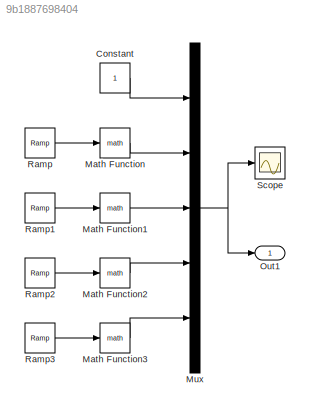
MODEL slx_9b1887698404
KIND model
CONFIG AbsTol = auto
CONFIG EnableMultiTasking = off
CONFIG FixedStep = auto
CONFIG MaxStep = auto
CONFIG MinStep = auto
CONFIG RelTol = 1e-3
CONFIG SampleTimeConstraint = Unconstrained
CONFIG SolverName = VariableStepAuto
CONFIG StartTime = 0.0
CONFIG StopTime = 10.0
BLOCK [Constant] Constant
BLOCK [Math] Math Function
BLOCK [Math] Math Function1
BLOCK [Math] Math Function2
BLOCK [Math] Math Function3
BLOCK [Mux] Mux
  DisplayOption = bar
  Inputs = 5
BLOCK [Outport] Out1
BLOCK [Reference] Ramp  REF=simulink/Sources/Ramp
  SourceBlock = simulink/Sources/Ramp
  SourceType = Ramp
BLOCK [Reference] Ramp1  REF=simulink/Sources/Ramp
  SourceBlock = simulink/Sources/Ramp
  SourceType = Ramp
BLOCK [Reference] Ramp2  REF=simulink/Sources/Ramp
  SourceBlock = simulink/Sources/Ramp
  SourceType = Ramp
BLOCK [Reference] Ramp3  REF=simulink/Sources/Ramp
  SourceBlock = simulink/Sources/Ramp
  SourceType = Ramp
BLOCK [Scope] Scope
  Floating = off
  NumInputPorts = 1
  ScopeSpecificationString = Simulink.scopes.TimeScopeBlockCfg('CurrentConfiguration', extmgr.ConfigurationSet(extmgr.Configuration('Core','General UI',true),extmgr.Configuration('Core','Source UI',true),extmgr.Configuration('Sources','WiredSimulink',true),extmgr.Configuration('Visuals','Time Domain',true,'SerializedDisplays',{struct('MinYLimReal','-2752.18322','MaxYLimReal','24779.64902','YLabelReal','','MinYLimMag','  0.000...<+1477ch>
LINE Constant:1 -> Mux:1
LINE Math Function1:1 -> Mux:3
LINE Math Function2:1 -> Mux:4
LINE Math Function3:1 -> Mux:5
LINE Math Function:1 -> Mux:2
NET Mux:1 -> Out1:1, Scope:1
LINE Ramp1:1 -> Math Function1:1
LINE Ramp2:1 -> Math Function2:1
LINE Ramp3:1 -> Math Function3:1
LINE Ramp:1 -> Math Function:1
note: NET lines group one-source signal fan-out (src -> all destinations, sorted); 1:1 wires keep LINE
